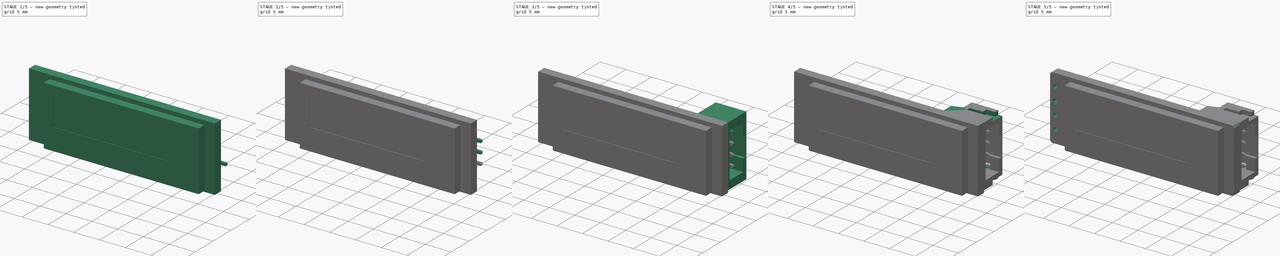
[diagram: build sequence overview — one tinted view per stage of 5, left to right]
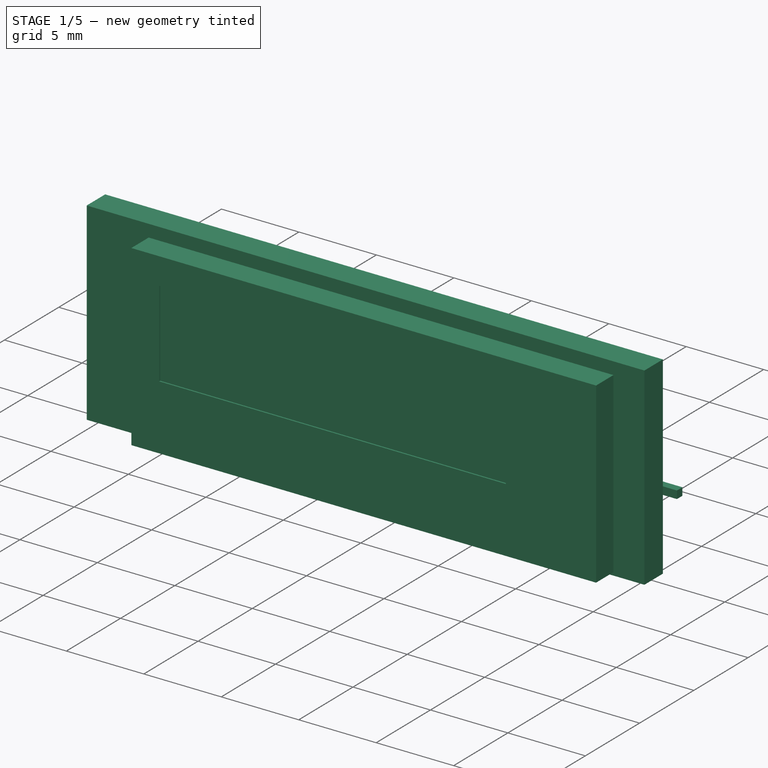
[diagram: stage 1 of 5 — iso view after this stage's code; geometry added in this stage tinted green]
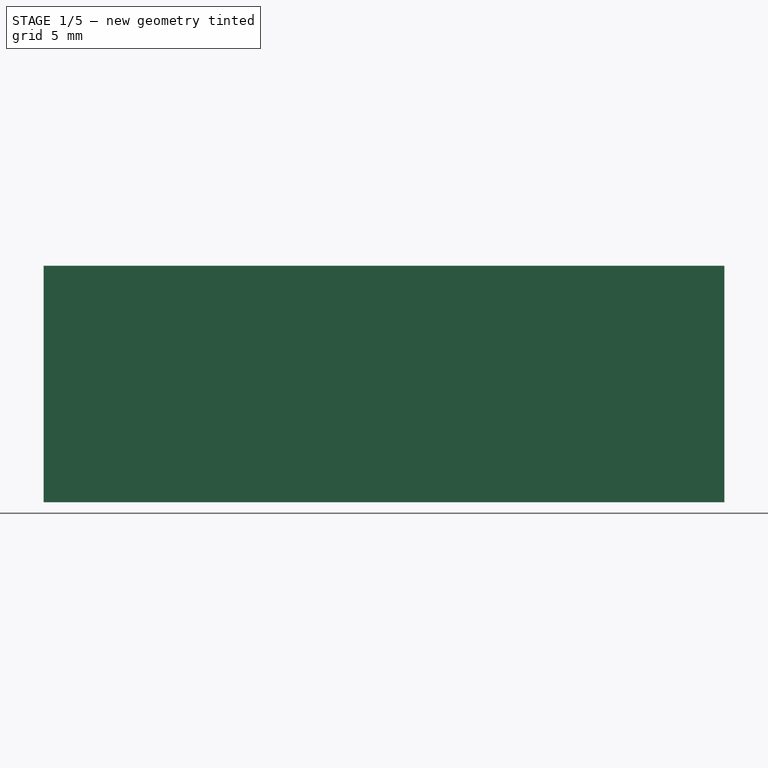
[diagram: stage 1 of 5 — front view after this stage's code; geometry added in this stage tinted green]
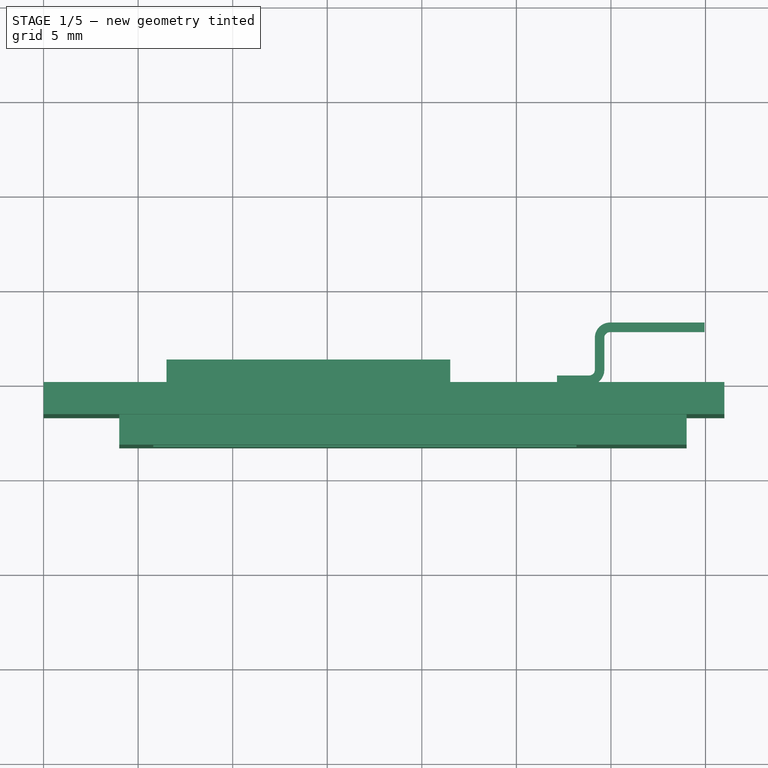
[diagram: stage 1 of 5 — top view after this stage's code; geometry added in this stage tinted green]
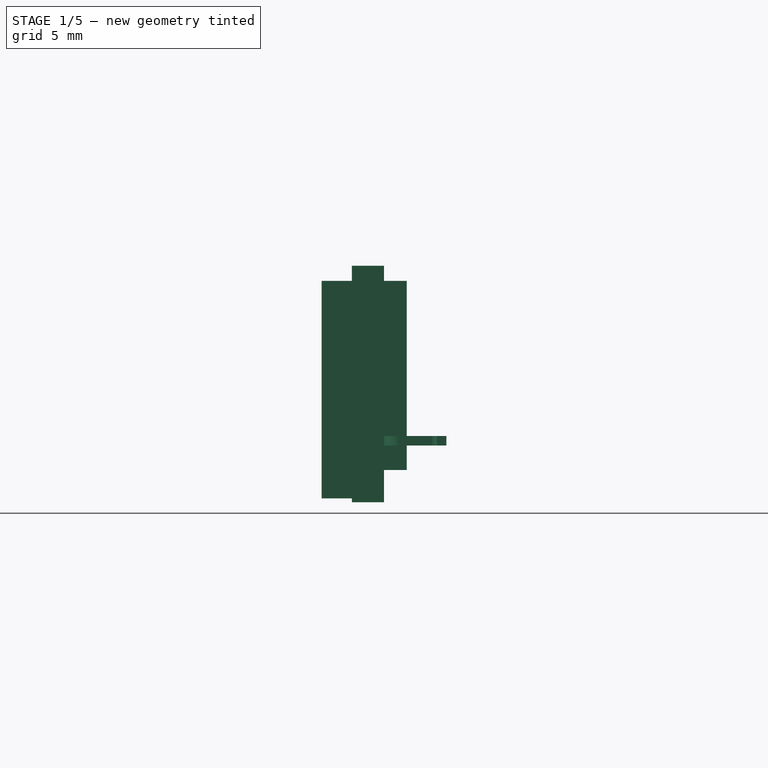
[diagram: stage 1 of 5 — right view after this stage's code; geometry added in this stage tinted green]
FCSTD DOCUMENT  (FreeCAD 0.19R24267 +99 (Git))
Label: Waveshare_OLED_0.91in
License: Creative Commons Attribution-NonCommercial-ShareAlike
LicenseURL: http://creativecommons.org/licenses/by-nc-sa/4.0/
objects: Sketcher::SketchObject×14, PartDesign::Pad×9, PartDesign::Plane×9, PartDesign::Body×7, PartDesign::Pocket×4, PartDesign::Chamfer×4, PartDesign::Mirrored×3, PartDesign::CoordinateSystem×2, PartDesign::Boolean×1, PartDesign::Hole×1, PartDesign::LinearPattern×1, PartDesign::Fillet×1, App::Part×1
note: 75 computed .brp shape members not serialized (recipe doc carries the construction recipe); baked Part::Feature solids carry a one-line shape summary decoded from their .brp

FEATURE [Sketcher::SketchObject] Sketch
  FullyConstrained = true
  MapMode = 5
  Placement = pos=(0,0,0) rot=(1,0,0;1.5708rad)
  Support = -> [XZ_Plane]
  sketch-geometry (4):
    g0: LineSegment StartX=0 StartY=12.5 StartZ=0 EndX=36 EndY=12.5 EndZ=0
    g1: LineSegment StartX=36 StartY=12.5 StartZ=0 EndX=36 EndY=0 EndZ=0
    g2: LineSegment StartX=36 StartY=0 StartZ=0 EndX=0 EndY=0 EndZ=0
    g3: LineSegment StartX=0 StartY=0 StartZ=0 EndX=0 EndY=12.5 EndZ=0
  constraints (11):
    c: Coincident(g0,g1)
    c: Coincident(g1,g2)
    c: Coincident(g2,g3)
    c: Coincident(g3,g0)
    c: Horizontal(g0)
    c: Horizontal(g2)
    c: Vertical(g1)
    c: Vertical(g3)
    c: Distance(g3) = 12.5
    c: Distance(g0) = 36
    c: Coincident(g2,g-1)
FEATURE [PartDesign::Pad] Pad  label="Board Outline"
  Direction = (1,1,1)
  Length = 1.7
  Length2 = 100
  Placement = pos=(0,0,0) rot=(1,0,0;1.5708rad)
  Profile = -> Sketch
  Refine = true
  Type = 0
FEATURE [PartDesign::Body] Body004  label="Pin003"
  Group = -> [DatumPlane003,CopyDatumPlane002,Sketch011,Pad007,Chamfer002]
  Origin = -> Origin004
  Tip = -> Chamfer002
FEATURE [PartDesign::Plane] CopyDatumPlane003
  Length = 60
  Placement = pos=(0,0,6.25) rot=(0,0,1;0rad)
  ResizeMode = 0
  Width = 60
FEATURE [PartDesign::Plane] DatumPlane004
  AttachmentOffset = pos=(0,0,-3) rot=(0,0,1;0rad)
  Length = 60
  MapMode = 5
  Placement = pos=(0,0,3.25) rot=(0,0,1;0rad)
  ResizeMode = 0
  Support = -> [CopyDatumPlane003]
  Width = 60
FEATURE [Sketcher::SketchObject] Sketch012
  FullyConstrained = true
  MapMode = 5
  Placement = pos=(0,0,3.25) rot=(0,0,1;0rad)
  Support = -> [DatumPlane004]
  sketch-geometry (12):
    g0: LineSegment StartX=34.95 StartY=2.8 StartZ=0 EndX=29.95 EndY=2.8 EndZ=0
    g1: LineSegment StartX=29.65 StartY=2.5 StartZ=0 EndX=29.65 EndY=0.8 EndZ=0
    g2: LineSegment StartX=28.85 StartY=-1.6e-15 StartZ=0 EndX=27.15 EndY=0 EndZ=0
    g3: LineSegment StartX=27.15 StartY=0 StartZ=0 EndX=27.15 EndY=0.5 EndZ=0
    g4: LineSegment StartX=27.15 StartY=0.5 StartZ=0 EndX=28.85 EndY=0.5 EndZ=0
    g5: LineSegment StartX=29.15 StartY=0.8 StartZ=0 EndX=29.15 EndY=2.5 EndZ=0
    g6: LineSegment StartX=29.95 StartY=3.3 StartZ=0 EndX=34.95 EndY=3.3 EndZ=0
    g7: LineSegment StartX=34.95 StartY=3.3 StartZ=0 EndX=34.95 EndY=2.8 EndZ=0
    g8: ArcOfCircle CenterX=29.95 CenterY=2.5 CenterZ=0 NormalX=0 NormalY=0 NormalZ=1 AngleXU=0 Radius=0.3 StartAngle=1.5708 EndAngle=3.14159
    g9: ArcOfCircle CenterX=28.85 CenterY=0.8 CenterZ=0 NormalX=0 NormalY=0 NormalZ=1 AngleXU=0 Radius=0.8 StartAngle=4.71239 EndAngle=6.28319
    g10: ArcOfCircle CenterX=28.85 CenterY=0.8 CenterZ=0 NormalX=0 NormalY=0 NormalZ=1 AngleXU=0 Radius=0.3 StartAngle=4.71239 EndAngle=6.28319
    g11: ArcOfCircle CenterX=29.95 CenterY=2.5 CenterZ=0 NormalX=0 NormalY=0 NormalZ=1 AngleXU=0 Radius=0.8 StartAngle=1.5708 EndAngle=3.14159
  constraints (30):
    c: Horizontal(g0)
    c: Vertical(g1)
    c: PointOnObject(g2,g-1)
    c: Coincident(g2,g3)
    c: Vertical(g3)
    c: Coincident(g3,g4)
    c: Horizontal(g4)
    c: Vertical(g5)
    c: Horizontal(g6)
    c: Coincident(g6,g7)
    c: Coincident(g7,g0)
    c: Vertical(g7)
    c: Distance(g7) = 0.5
    c: Equal(g3,g7)
    c: DistanceY(g0) = 2.8
    c: DistanceX(g0) = 34.95
    c: Tangent(g1,g8) = -1.5708
    c: Tangent(g0,g8) = -1.5708
    c: Tangent(g2,g9) = 1.5708
    c: Tangent(g1,g9) = 1.5708
    c: Tangent(g4,g10) = -1.5708
    c: Tangent(g5,g10) = -1.5708
    c: Tangent(g5,g11) = 1.5708
    c: Tangent(g6,g11) = 1.5708
    c: Distance(g0,g1) = 5.3
    c: Distance(g1,g3) = 2.5
    c: Coincident(g10,g9)
    c: Coincident(g11,g8)
    c: Radius(g11) = 0.8
    c: Radius(g9) = 0.8
FEATURE [PartDesign::Pad] Pad008
  Direction = (1,1,1)
  Length = 0.5
  Length2 = 100
  Midplane = true
  Placement = pos=(0,0,3.25) rot=(0,0,1;0rad)
  Profile = -> Sketch012
  Refine = true
  Type = 0
FEATURE [PartDesign::Body] Body001  label="Connector PH2.0"
  Group = -> [Sketch004,Pad003,Sketch005,Pocket,Sketch006,Pocket001,DatumPlane,Mirrored,Sketch007,Pocket002,Mirrored001,Sketch008,Pad004,Mirrored002,Boolean]
  Origin = -> Origin001
  Tip = -> Boolean
FEATURE [PartDesign::Pad] Pad001  label="Display Glas"
  BaseFeature = -> Pad
  Direction = (1,1,1)
  Length = 3.3
  Length2 = 100
  Placement = pos=(0,0,0) rot=(1,0,0;1.5708rad)
  Profile = -> Sketch001
  Refine = true
  Type = 0
FEATURE [Sketcher::SketchObject] Sketch002
  FullyConstrained = true
  MapMode = 5
  Placement = pos=(0,-3.3,1.5e-15) rot=(1,0,0;1.5708rad)
  Support = -> [Pad001]
  sketch-geometry (5):
    g0: LineSegment StartX=5.8 StartY=9.98 StartZ=0 EndX=28.18 EndY=9.98 EndZ=0
    g1: LineSegment StartX=28.18 StartY=9.98 StartZ=0 EndX=28.18 EndY=4.4 EndZ=0
    g2: LineSegment StartX=28.18 StartY=4.4 StartZ=0 EndX=5.8 EndY=4.4 EndZ=0
    g3: LineSegment StartX=5.8 StartY=4.4 StartZ=0 EndX=5.8 EndY=9.98 EndZ=0
    g4: GeomPoint X=16.99 Y=7.19 Z=0
  constraints (15):
    c: Coincident(g0,g1)
    c: Coincident(g1,g2)
    c: Coincident(g2,g3)
    c: Coincident(g3,g0)
    c: Horizontal(g0)
    c: Horizontal(g2)
    c: Vertical(g1)
    c: Vertical(g3)
    c: Distance(g0) = 22.38
    c: Distance(g3) = 5.58
    c: Distance(g-1,g3) = 5.8
    c: Distance(g-1,g2) = 4.4
    c: Symmetric(g0,g1,g4)
    c: DistanceX(g4) = 16.99
    c: DistanceY(g4) = 7.19
FEATURE [PartDesign::Pocket] Pocket003  label="Display Active Area"
  BaseFeature = -> Pad001
  Length = 0.1
  Length2 = 100
  Placement = pos=(0,0,0) rot=(1,0,0;1.5708rad)
  Profile = -> Sketch002
  Refine = true
  Type = 0
FEATURE [PartDesign::Body] Body  label="Mainboard"
  Group = -> [Sketch,Pad,Sketch001,Pad001,Pocket003,Sketch002,Sketch003,Hole,LinearPattern,Fillet]
  Origin = -> Origin
  Tip = -> Fillet
FEATURE [Sketcher::SketchObject] Sketch013
  FullyConstrained = true
  MapMode = 5
  Placement = pos=(0,0,0) rot=(1,0,0;1.5708rad)
  Support = -> [XZ_Plane006]
  sketch-geometry (6):
    g0: LineSegment StartX=19.5 StartY=1.7 StartZ=0 EndX=19.5 EndY=8.7 EndZ=0
    g1: LineSegment StartX=19.5 StartY=8.7 StartZ=0 EndX=6.5 EndY=8.7 EndZ=0
    g2: LineSegment StartX=6.5 StartY=8.7 StartZ=0 EndX=6.5 EndY=11.7 EndZ=0
    g3: LineSegment StartX=6.5 StartY=11.7 StartZ=0 EndX=21.5 EndY=11.7 EndZ=0
    g4: LineSegment StartX=21.5 StartY=11.7 StartZ=0 EndX=21.5 EndY=1.7 EndZ=0
    g5: LineSegment StartX=21.5 StartY=1.7 StartZ=0 EndX=19.5 EndY=1.7 EndZ=0
  constraints (18):
    c: Vertical(g0)
    c: Coincident(g0,g1)
    c: Horizontal(g1)
    c: Coincident(g1,g2)
    c: Vertical(g2)
    c: Coincident(g2,g3)
    c: Horizontal(g3)
    c: Coincident(g3,g4)
    c: Vertical(g4)
    c: Coincident(g4,g5)
    c: Coincident(g5,g0)
    c: Horizontal(g5)
    c: Distance(g5) = 2
    c: Distance(g2) = 3
    c: DistanceY(g3) = 11.7
    c: Distance(g4) = 10
    c: DistanceX(g3) = 21.5
    c: DistanceX(g2) = 6.5
FEATURE [PartDesign::Pad] Pad009
  Direction = (1,1,1)
  Length = 1.2
  Length2 = 100
  Placement = pos=(0,0,0) rot=(1,0,0;1.5708rad)
  Profile = -> Sketch013
  Refine = true
  Reversed = true
  Type = 0
FEATURE [PartDesign::Body] Body006  label="Components"
  Group = -> [Sketch013,Pad009]
  Origin = -> Origin006
  Tip = -> Pad009
FEATURE [PartDesign::CoordinateSystem] LCS_0
  AttacherType = Attacher::AttachEngine3D
  MapMode = 2
  Support = -> [X_Axis007]
FEATURE [PartDesign::CoordinateSystem] LCS_OLEDDisplay_Center
  AttacherType = Attacher::AttachEngine3D
  AttachmentOffset = pos=(16.99,7.19,3.3) rot=(0,0,1;0rad)
  MapMode = 5
  Placement = pos=(16.99,-3.3,7.19) rot=(1,0,0;1.5708rad)
  Support = -> [XZ_Plane007]
  expr: .AttachmentOffset.Base.x = Sketch002.Constraints[13]
  expr: .AttachmentOffset.Base.y = Sketch002.Constraints[14]
  expr: .AttachmentOffset.Base.z = <<Display Glas>>.Length
FEATURE [App::Part] OLED_Display
  Group = -> [LCS_0,LCS_OLEDDisplay_Center,Body,Body001,Body006]
  Origin = -> Origin007
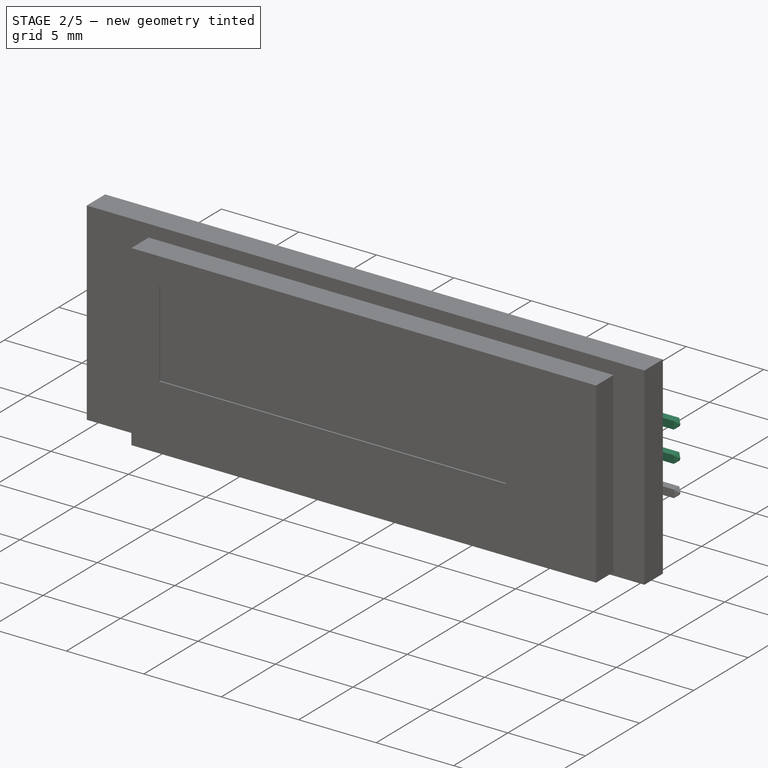
[diagram: stage 2 of 5 — iso view after this stage's code; geometry added in this stage tinted green]
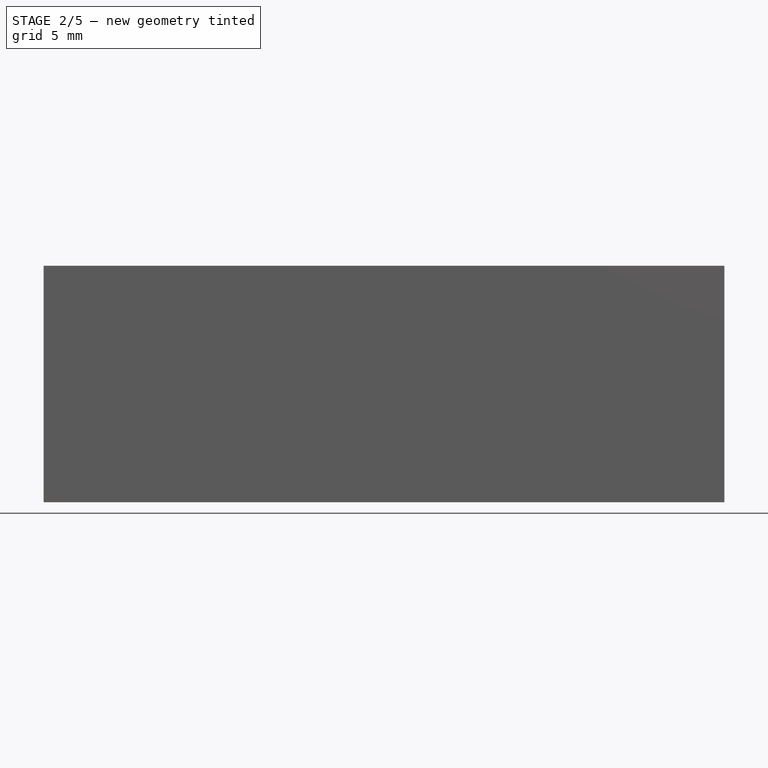
[diagram: stage 2 of 5 — front view after this stage's code; geometry added in this stage tinted green]
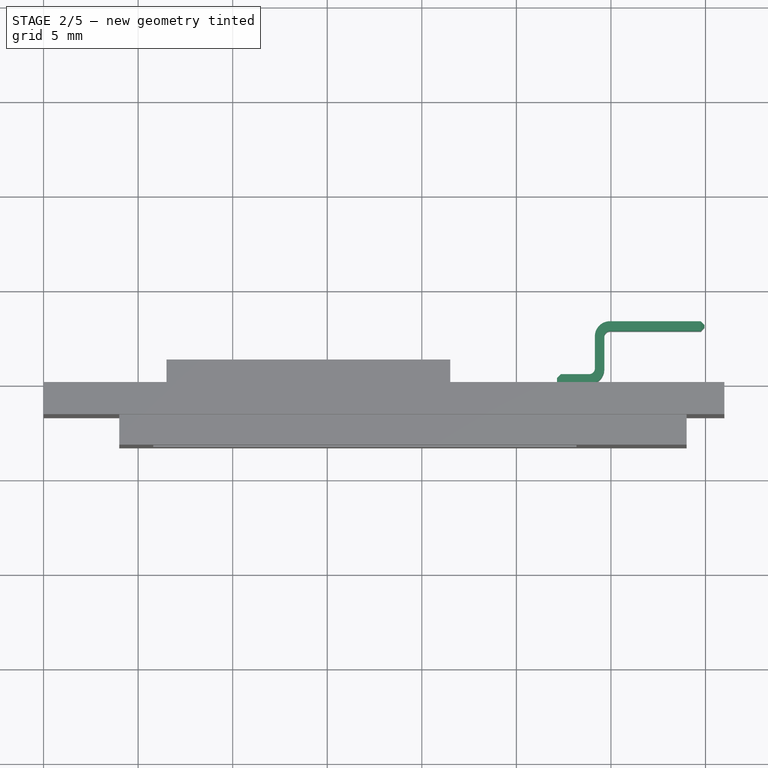
[diagram: stage 2 of 5 — top view after this stage's code; geometry added in this stage tinted green]
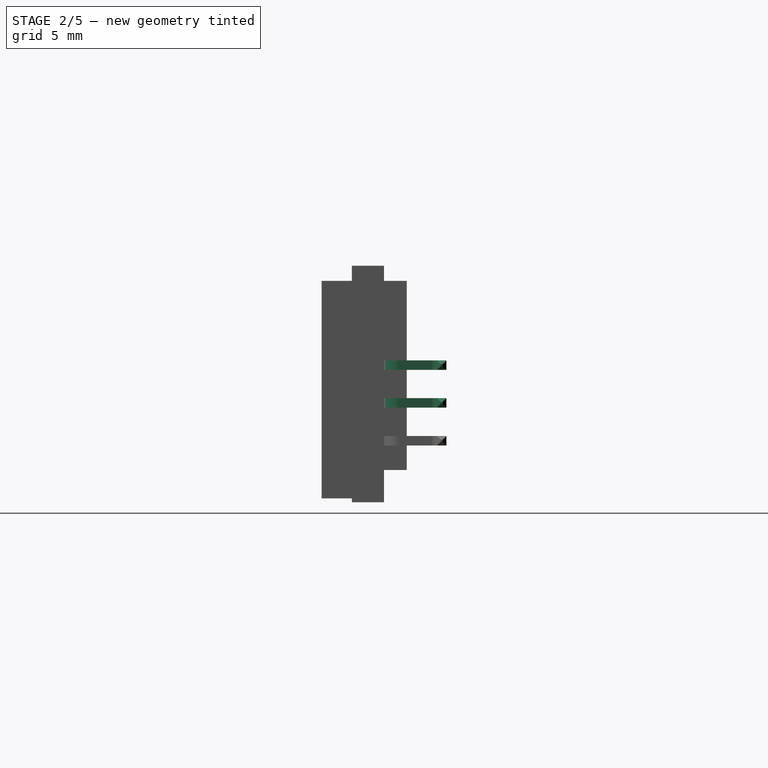
[diagram: stage 2 of 5 — right view after this stage's code; geometry added in this stage tinted green]
FEATURE [PartDesign::Body] Body002  label="Pin001"
  Group = -> [DatumPlane001,CopyDatumPlane,Sketch009,Pad005,Chamfer]
  Origin = -> Origin002
  Tip = -> Chamfer
FEATURE [PartDesign::Plane] CopyDatumPlane001
  Length = 60
  Placement = pos=(0,0,6.25) rot=(0,0,1;0rad)
  ResizeMode = 0
  Width = 60
FEATURE [PartDesign::Plane] DatumPlane002
  AttachmentOffset = pos=(0,0,1) rot=(0,0,1;0rad)
  Length = 60
  MapMode = 5
  Placement = pos=(0,0,7.25) rot=(0,0,1;0rad)
  ResizeMode = 0
  Support = -> [CopyDatumPlane001]
  Width = 60
FEATURE [Sketcher::SketchObject] Sketch010
  FullyConstrained = true
  MapMode = 5
  Placement = pos=(0,0,7.25) rot=(0,0,1;0rad)
  Support = -> [DatumPlane002]
  sketch-geometry (12):
    g0: LineSegment StartX=34.95 StartY=2.8 StartZ=0 EndX=29.95 EndY=2.8 EndZ=0
    g1: LineSegment StartX=29.65 StartY=2.5 StartZ=0 EndX=29.65 EndY=0.8 EndZ=0
    g2: LineSegment StartX=28.85 StartY=-1.6e-15 StartZ=0 EndX=27.15 EndY=0 EndZ=0
    g3: LineSegment StartX=27.15 StartY=0 StartZ=0 EndX=27.15 EndY=0.5 EndZ=0
    g4: LineSegment StartX=27.15 StartY=0.5 StartZ=0 EndX=28.85 EndY=0.5 EndZ=0
    g5: LineSegment StartX=29.15 StartY=0.8 StartZ=0 EndX=29.15 EndY=2.5 EndZ=0
    g6: LineSegment StartX=29.95 StartY=3.3 StartZ=0 EndX=34.95 EndY=3.3 EndZ=0
    g7: LineSegment StartX=34.95 StartY=3.3 StartZ=0 EndX=34.95 EndY=2.8 EndZ=0
    g8: ArcOfCircle CenterX=29.95 CenterY=2.5 CenterZ=0 NormalX=0 NormalY=0 NormalZ=1 AngleXU=0 Radius=0.3 StartAngle=1.5708 EndAngle=3.14159
    g9: ArcOfCircle CenterX=28.85 CenterY=0.8 CenterZ=0 NormalX=0 NormalY=0 NormalZ=1 AngleXU=0 Radius=0.8 StartAngle=4.71239 EndAngle=6.28319
    g10: ArcOfCircle CenterX=28.85 CenterY=0.8 CenterZ=0 NormalX=0 NormalY=0 NormalZ=1 AngleXU=0 Radius=0.3 StartAngle=4.71239 EndAngle=6.28319
    g11: ArcOfCircle CenterX=29.95 CenterY=2.5 CenterZ=0 NormalX=0 NormalY=0 NormalZ=1 AngleXU=0 Radius=0.8 StartAngle=1.5708 EndAngle=3.14159
  constraints (30):
    c: Horizontal(g0)
    c: Vertical(g1)
    c: PointOnObject(g2,g-1)
    c: Coincident(g2,g3)
    c: Vertical(g3)
    c: Coincident(g3,g4)
    c: Horizontal(g4)
    c: Vertical(g5)
    c: Horizontal(g6)
    c: Coincident(g6,g7)
    c: Coincident(g7,g0)
    c: Vertical(g7)
    c: Distance(g7) = 0.5
    c: Equal(g3,g7)
    c: DistanceY(g0) = 2.8
    c: DistanceX(g0) = 34.95
    c: Tangent(g1,g8) = -1.5708
    c: Tangent(g0,g8) = -1.5708
    c: Tangent(g2,g9) = 1.5708
    c: Tangent(g1,g9) = 1.5708
    c: Tangent(g4,g10) = -1.5708
    c: Tangent(g5,g10) = -1.5708
    c: Tangent(g5,g11) = 1.5708
    c: Tangent(g6,g11) = 1.5708
    c: Distance(g0,g1) = 5.3
    c: Distance(g1,g3) = 2.5
    c: Coincident(g10,g9)
    c: Coincident(g11,g8)
    c: Radius(g11) = 0.8
    c: Radius(g9) = 0.8
FEATURE [PartDesign::Pad] Pad006
  Direction = (1,1,1)
  Length = 0.5
  Length2 = 100
  Midplane = true
  Placement = pos=(0,0,7.25) rot=(0,0,1;0rad)
  Profile = -> Sketch010
  Refine = true
  Type = 0
FEATURE [PartDesign::Chamfer] Chamfer001
  Angle = 45
  Base = -> Pad006 [Edge23,Face2]
  BaseFeature = -> Pad006
  ChamferType = 0
  FlipDirection = false
  Placement = pos=(0,0,7.25) rot=(0,0,1;0rad)
  Refine = true
  Size = 0.2
  Size2 = 1
  SupportTransform = false
FEATURE [PartDesign::Body] Body003  label="Pin002"
  Group = -> [DatumPlane002,CopyDatumPlane001,Sketch010,Pad006,Chamfer001]
  Origin = -> Origin003
  Tip = -> Chamfer001
FEATURE [PartDesign::Plane] CopyDatumPlane002
  Length = 60
  Placement = pos=(0,0,6.25) rot=(0,0,1;0rad)
  ResizeMode = 0
  Width = 60
FEATURE [PartDesign::Plane] DatumPlane003
  AttachmentOffset = pos=(0,0,-1) rot=(0,0,1;0rad)
  Length = 60
  MapMode = 5
  Placement = pos=(0,0,5.25) rot=(0,0,1;0rad)
  ResizeMode = 0
  Support = -> [CopyDatumPlane002]
  Width = 60
FEATURE [Sketcher::SketchObject] Sketch011
  FullyConstrained = true
  MapMode = 5
  Placement = pos=(0,0,5.25) rot=(0,0,1;0rad)
  Support = -> [DatumPlane003]
  sketch-geometry (12):
    g0: LineSegment StartX=34.95 StartY=2.8 StartZ=0 EndX=29.95 EndY=2.8 EndZ=0
    g1: LineSegment StartX=29.65 StartY=2.5 StartZ=0 EndX=29.65 EndY=0.8 EndZ=0
    g2: LineSegment StartX=28.85 StartY=-1.6e-15 StartZ=0 EndX=27.15 EndY=0 EndZ=0
    g3: LineSegment StartX=27.15 StartY=0 StartZ=0 EndX=27.15 EndY=0.5 EndZ=0
    g4: LineSegment StartX=27.15 StartY=0.5 StartZ=0 EndX=28.85 EndY=0.5 EndZ=0
    g5: LineSegment StartX=29.15 StartY=0.8 StartZ=0 EndX=29.15 EndY=2.5 EndZ=0
    g6: LineSegment StartX=29.95 StartY=3.3 StartZ=0 EndX=34.95 EndY=3.3 EndZ=0
    g7: LineSegment StartX=34.95 StartY=3.3 StartZ=0 EndX=34.95 EndY=2.8 EndZ=0
    g8: ArcOfCircle CenterX=29.95 CenterY=2.5 CenterZ=0 NormalX=0 NormalY=0 NormalZ=1 AngleXU=0 Radius=0.3 StartAngle=1.5708 EndAngle=3.14159
    g9: ArcOfCircle CenterX=28.85 CenterY=0.8 CenterZ=0 NormalX=0 NormalY=0 NormalZ=1 AngleXU=0 Radius=0.8 StartAngle=4.71239 EndAngle=6.28319
    g10: ArcOfCircle CenterX=28.85 CenterY=0.8 CenterZ=0 NormalX=0 NormalY=0 NormalZ=1 AngleXU=0 Radius=0.3 StartAngle=4.71239 EndAngle=6.28319
    g11: ArcOfCircle CenterX=29.95 CenterY=2.5 CenterZ=0 NormalX=0 NormalY=0 NormalZ=1 AngleXU=0 Radius=0.8 StartAngle=1.5708 EndAngle=3.14159
  constraints (30):
    c: Horizontal(g0)
    c: Vertical(g1)
    c: PointOnObject(g2,g-1)
    c: Coincident(g2,g3)
    c: Vertical(g3)
    c: Coincident(g3,g4)
    c: Horizontal(g4)
    c: Vertical(g5)
    c: Horizontal(g6)
    c: Coincident(g6,g7)
    c: Coincident(g7,g0)
    c: Vertical(g7)
    c: Distance(g7) = 0.5
    c: Equal(g3,g7)
    c: DistanceY(g0) = 2.8
    c: DistanceX(g0) = 34.95
    c: Tangent(g1,g8) = -1.5708
    c: Tangent(g0,g8) = -1.5708
    c: Tangent(g2,g9) = 1.5708
    c: Tangent(g1,g9) = 1.5708
    c: Tangent(g4,g10) = -1.5708
    c: Tangent(g5,g10) = -1.5708
    c: Tangent(g5,g11) = 1.5708
    c: Tangent(g6,g11) = 1.5708
    c: Distance(g0,g1) = 5.3
    c: Distance(g1,g3) = 2.5
    c: Coincident(g10,g9)
    c: Coincident(g11,g8)
    c: Radius(g11) = 0.8
    c: Radius(g9) = 0.8
FEATURE [PartDesign::Pad] Pad007
  Direction = (1,1,1)
  Length = 0.5
  Length2 = 100
  Midplane = true
  Placement = pos=(0,0,5.25) rot=(0,0,1;0rad)
  Profile = -> Sketch011
  Refine = true
  Type = 0
FEATURE [PartDesign::Chamfer] Chamfer002
  Angle = 45
  Base = -> Pad007 [Edge23,Face2]
  BaseFeature = -> Pad007
  ChamferType = 0
  FlipDirection = false
  Placement = pos=(0,0,5.25) rot=(0,0,1;0rad)
  Refine = true
  Size = 0.2
  Size2 = 1
  SupportTransform = false
FEATURE [PartDesign::Chamfer] Chamfer003
  Angle = 45
  Base = -> Pad008 [Edge23,Face2]
  BaseFeature = -> Pad008
  ChamferType = 0
  FlipDirection = false
  Placement = pos=(0,0,3.25) rot=(0,0,1;0rad)
  Refine = true
  Size = 0.2
  Size2 = 1
  SupportTransform = false
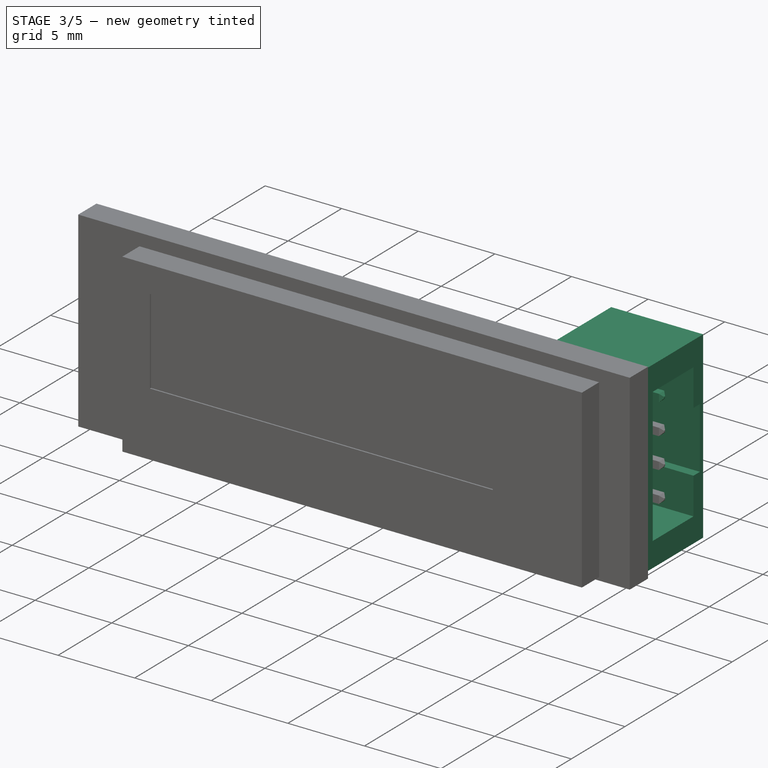
[diagram: stage 3 of 5 — iso view after this stage's code; geometry added in this stage tinted green]
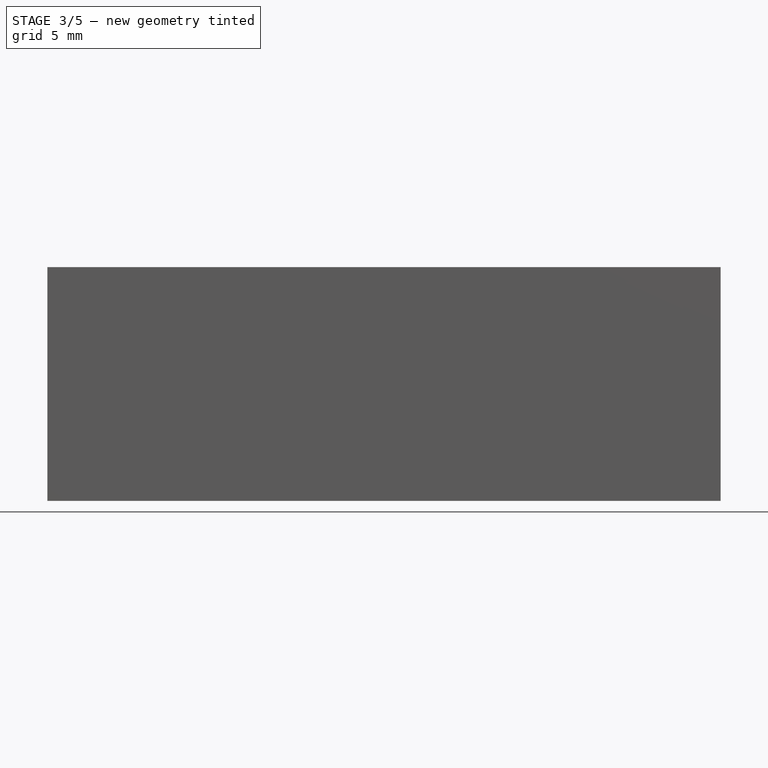
[diagram: stage 3 of 5 — front view after this stage's code; geometry added in this stage tinted green]
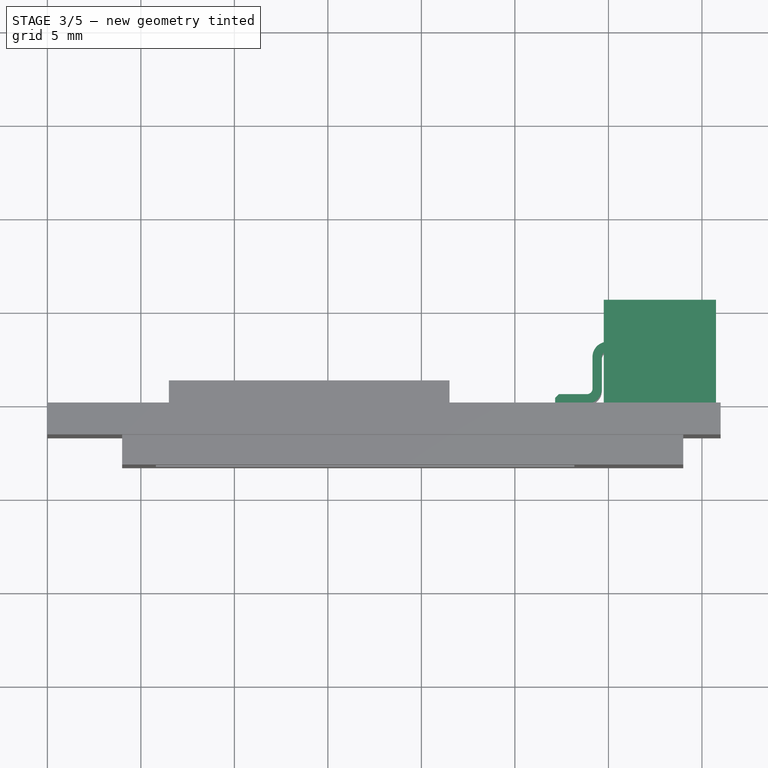
[diagram: stage 3 of 5 — top view after this stage's code; geometry added in this stage tinted green]
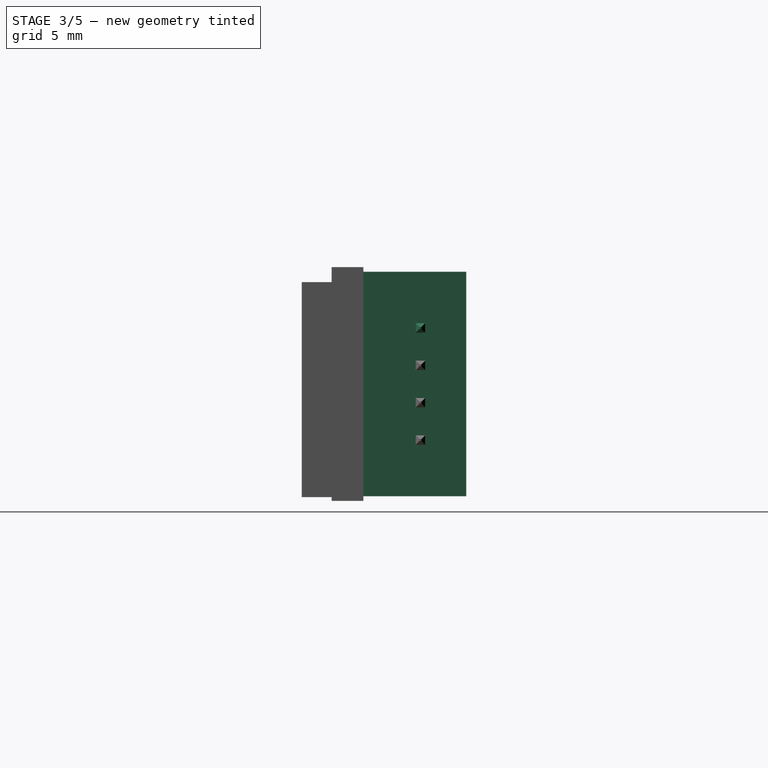
[diagram: stage 3 of 5 — right view after this stage's code; geometry added in this stage tinted green]
FEATURE [Sketcher::SketchObject] Sketch001
  FullyConstrained = true
  MapMode = 5
  Placement = pos=(0,0,0) rot=(1,0,0;1.5708rad)
  Support = -> [XZ_Plane]
  sketch-geometry (4):
    g0: LineSegment StartX=4 StartY=11.7 StartZ=0 EndX=34 EndY=11.7 EndZ=0
    g1: LineSegment StartX=34 StartY=11.7 StartZ=0 EndX=34 EndY=0.2 EndZ=0
    g2: LineSegment StartX=34 StartY=0.2 StartZ=0 EndX=4 EndY=0.2 EndZ=0
    g3: LineSegment StartX=4 StartY=0.2 StartZ=0 EndX=4 EndY=11.7 EndZ=0
  constraints (12):
    c: Coincident(g0,g1)
    c: Coincident(g1,g2)
    c: Coincident(g2,g3)
    c: Coincident(g3,g0)
    c: Horizontal(g0)
    c: Horizontal(g2)
    c: Vertical(g1)
    c: Vertical(g3)
    c: Distance(g0) = 30
    c: Distance(g3) = 11.5
    c: Distance(g-1,g3) = 4
    c: Distance(g-1,g2) = 0.2
FEATURE [Sketcher::SketchObject] Sketch003
  FullyConstrained = true
  MapMode = 5
  Placement = pos=(0,0,0) rot=(1,0,0;1.5708rad)
  Support = -> [XZ_Plane]
  sketch-geometry (1):
    g0: Circle CenterX=1 CenterY=2.44 CenterZ=0 NormalX=0 NormalY=0 NormalZ=1 AngleXU=0 Radius=0.5
  constraints (3):
    c: DistanceX(g-2,g0) = 1
    c: Radius(g0) = 0.5
    c: DistanceY(g-1,g0) = 2.44
FEATURE [Sketcher::SketchObject] Sketch004
  FullyConstrained = true
  MapMode = 5
  Placement = pos=(0,0,0) rot=(1,0,0;1.5708rad)
  Support = -> [XZ_Plane001]
  expr: Constraints[20] = Sketch.Constraints[9]
  expr: Constraints[19] = Sketch.Constraints[8]
  sketch-geometry (8):
    g0: LineSegment StartX=29.75 StartY=0.25 StartZ=0 EndX=35.75 EndY=0.25 EndZ=0
    g1: LineSegment StartX=35.75 StartY=0.25 StartZ=0 EndX=35.75 EndY=12.25 EndZ=0
    g2: LineSegment StartX=35.75 StartY=12.25 StartZ=0 EndX=29.75 EndY=12.25 EndZ=0
    g3: LineSegment StartX=29.75 StartY=12.25 StartZ=0 EndX=29.75 EndY=0.25 EndZ=0
    g4: LineSegment StartX=0 StartY=12.5 StartZ=0 EndX=36 EndY=12.5 EndZ=0
    g5: LineSegment StartX=36 StartY=12.5 StartZ=0 EndX=36 EndY=0 EndZ=0
    g6: LineSegment StartX=36 StartY=0 StartZ=0 EndX=0 EndY=0 EndZ=0
    g7: LineSegment StartX=0 StartY=0 StartZ=0 EndX=0 EndY=12.5 EndZ=0
  constraints (23):
    c: Coincident(g0,g1)
    c: Coincident(g1,g2)
    c: Coincident(g2,g3)
    c: Coincident(g3,g0)
    c: Horizontal(g0)
    c: Horizontal(g2)
    c: Vertical(g1)
    c: Vertical(g3)
    c: DistanceY(g0) = 0.25
    c: Distance(g1) = 12
    c: Distance(g2) = 6
    c: Coincident(g4,g5)
    c: Coincident(g5,g6)
    c: Coincident(g6,g7)
    c: Coincident(g7,g4)
    c: Horizontal(g4)
    c: Horizontal(g6)
    c: Vertical(g5)
    c: Vertical(g7)
    c: Distance(g7) = 12.5
    c: Distance(g4) = 36
    c: Coincident(g6,g-1)
    c: Distance(g0,g5) = 0.25
FEATURE [PartDesign::Pad] Pad003
  Direction = (1,1,1)
  Length = 5.5
  Length2 = 100
  Placement = pos=(0,0,0) rot=(1,0,0;1.5708rad)
  Profile = -> Sketch004
  Refine = true
  Reversed = true
  Type = 0
FEATURE [Sketcher::SketchObject] Sketch005
  FullyConstrained = true
  MapMode = 5
  Placement = pos=(35.75,0,0) rot=(0.707107,0,0.707107;3.14159rad)
  Support = -> [Pad003]
  sketch-geometry (9):
    g0: LineSegment StartX=1.85 StartY=-0.8 StartZ=0 EndX=10.65 EndY=-0.8 EndZ=0
    g1: LineSegment StartX=10.65 StartY=-0.8 StartZ=0 EndX=10.65 EndY=-4.6 EndZ=0
    g2: LineSegment StartX=10.65 StartY=-4.6 StartZ=0 EndX=8.25 EndY=-4.6 EndZ=0
    g3: LineSegment StartX=1.85 StartY=-4.6 StartZ=0 EndX=1.85 EndY=-0.8 EndZ=0
    g4: GeomPoint X=6.25 Y=-2.7 Z=0
    g5: LineSegment StartX=4.25 StartY=-4.6 StartZ=0 EndX=4.25 EndY=-5.2 EndZ=0
    g6: LineSegment StartX=4.25 StartY=-5.2 StartZ=0 EndX=8.25 EndY=-5.2 EndZ=0
    g7: LineSegment StartX=8.25 StartY=-5.2 StartZ=0 EndX=8.25 EndY=-4.6 EndZ=0
    g8: LineSegment StartX=4.25 StartY=-4.6 StartZ=0 EndX=1.85 EndY=-4.6 EndZ=0
  constraints (24):
    c: Coincident(g0,g1)
    c: Coincident(g1,g2)
    c: Coincident(g8,g3)
    c: Coincident(g3,g0)
    c: Horizontal(g0)
    c: Horizontal(g2)
    c: Vertical(g1)
    c: Vertical(g3)
    c: Symmetric(g0,g1,g4)
    c: DistanceX(g4) = 6.25
    c: Distance(g1) = 3.8
    c: Distance(g-1,g0) = 0.8
    c: Coincident(g5,g6)
    c: Horizontal(g6)
    c: Coincident(g6,g7)
    c: Vertical(g5)
    c: Coincident(g2,g7)
    c: Coincident(g8,g5)
    c: Tangent(g2,g8)
    c: Vertical(g7)
    c: Distance(g0) = 8.8
    c: Distance(g6) = 4
    c: Distance(g5) = 0.6
    c: Distance(g2) = 2.4
FEATURE [PartDesign::Pocket] Pocket
  BaseFeature = -> Pad003
  Length = 4.5
  Length2 = 100
  Placement = pos=(0,0,0) rot=(1,0,0;1.5708rad)
  Profile = -> Sketch005
  Refine = true
  Type = 0
FEATURE [PartDesign::Plane] CopyDatumPlane
  Length = 70.8999
  Placement = pos=(0,0,6.25) rot=(0,0,1;0rad)
  ResizeMode = 0
  Width = 60.9499
FEATURE [PartDesign::Plane] DatumPlane001
  AttachmentOffset = pos=(0,0,3) rot=(0,0,1;0rad)
  Length = 60
  MapMode = 5
  Placement = pos=(0,0,9.25) rot=(0,0,1;0rad)
  ResizeMode = 0
  Support = -> [CopyDatumPlane]
  Width = 60
FEATURE [Sketcher::SketchObject] Sketch009
  FullyConstrained = true
  MapMode = 5
  Placement = pos=(0,0,9.25) rot=(0,0,1;0rad)
  Support = -> [DatumPlane001]
  sketch-geometry (12):
    g0: LineSegment StartX=34.95 StartY=2.8 StartZ=0 EndX=29.95 EndY=2.8 EndZ=0
    g1: LineSegment StartX=29.65 StartY=2.5 StartZ=0 EndX=29.65 EndY=0.8 EndZ=0
    g2: LineSegment StartX=28.85 StartY=-1.6e-15 StartZ=0 EndX=27.15 EndY=0 EndZ=0
    g3: LineSegment StartX=27.15 StartY=0 StartZ=0 EndX=27.15 EndY=0.5 EndZ=0
    g4: LineSegment StartX=27.15 StartY=0.5 StartZ=0 EndX=28.85 EndY=0.5 EndZ=0
    g5: LineSegment StartX=29.15 StartY=0.8 StartZ=0 EndX=29.15 EndY=2.5 EndZ=0
    g6: LineSegment StartX=29.95 StartY=3.3 StartZ=0 EndX=34.95 EndY=3.3 EndZ=0
    g7: LineSegment StartX=34.95 StartY=3.3 StartZ=0 EndX=34.95 EndY=2.8 EndZ=0
    g8: ArcOfCircle CenterX=29.95 CenterY=2.5 CenterZ=0 NormalX=0 NormalY=0 NormalZ=1 AngleXU=0 Radius=0.3 StartAngle=1.5708 EndAngle=3.14159
    g9: ArcOfCircle CenterX=28.85 CenterY=0.8 CenterZ=0 NormalX=0 NormalY=0 NormalZ=1 AngleXU=0 Radius=0.8 StartAngle=4.71239 EndAngle=6.28319
    g10: ArcOfCircle CenterX=28.85 CenterY=0.8 CenterZ=0 NormalX=0 NormalY=0 NormalZ=1 AngleXU=0 Radius=0.3 StartAngle=4.71239 EndAngle=6.28319
    g11: ArcOfCircle CenterX=29.95 CenterY=2.5 CenterZ=0 NormalX=0 NormalY=0 NormalZ=1 AngleXU=0 Radius=0.8 StartAngle=1.5708 EndAngle=3.14159
  constraints (30):
    c: Horizontal(g0)
    c: Vertical(g1)
    c: PointOnObject(g2,g-1)
    c: Coincident(g2,g3)
    c: Vertical(g3)
    c: Coincident(g3,g4)
    c: Horizontal(g4)
    c: Vertical(g5)
    c: Horizontal(g6)
    c: Coincident(g6,g7)
    c: Coincident(g7,g0)
    c: Vertical(g7)
    c: Distance(g7) = 0.5
    c: Equal(g3,g7)
    c: DistanceY(g0) = 2.8
    c: DistanceX(g0) = 34.95
    c: Tangent(g1,g8) = -1.5708
    c: Tangent(g0,g8) = -1.5708
    c: Tangent(g2,g9) = 1.5708
    c: Tangent(g1,g9) = 1.5708
    c: Tangent(g4,g10) = -1.5708
    c: Tangent(g5,g10) = -1.5708
    c: Tangent(g5,g11) = 1.5708
    c: Tangent(g6,g11) = 1.5708
    c: Distance(g0,g1) = 5.3
    c: Distance(g1,g3) = 2.5
    c: Coincident(g10,g9)
    c: Coincident(g11,g8)
    c: Radius(g11) = 0.8
    c: Radius(g9) = 0.8
FEATURE [PartDesign::Pad] Pad005
  Direction = (1,1,1)
  Length = 0.5
  Length2 = 100
  Midplane = true
  Placement = pos=(0,0,9.25) rot=(0,0,1;0rad)
  Profile = -> Sketch009
  Refine = true
  Type = 0
FEATURE [PartDesign::Chamfer] Chamfer
  Angle = 45
  Base = -> Pad005 [Edge23,Face2]
  BaseFeature = -> Pad005
  ChamferType = 0
  FlipDirection = false
  Placement = pos=(0,0,9.25) rot=(0,0,1;0rad)
  Refine = true
  Size = 0.2
  Size2 = 1
  SupportTransform = false
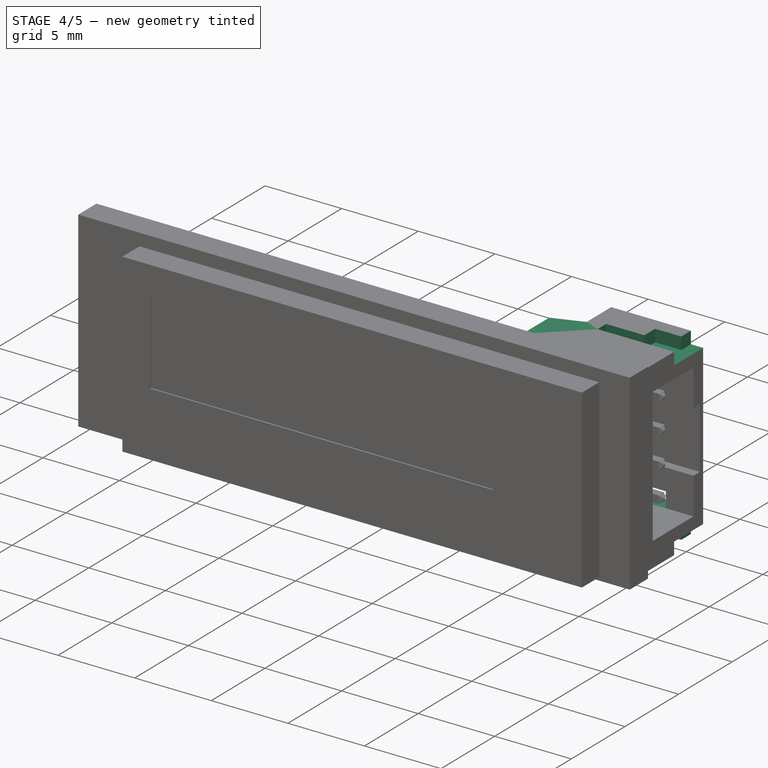
[diagram: stage 4 of 5 — iso view after this stage's code; geometry added in this stage tinted green]
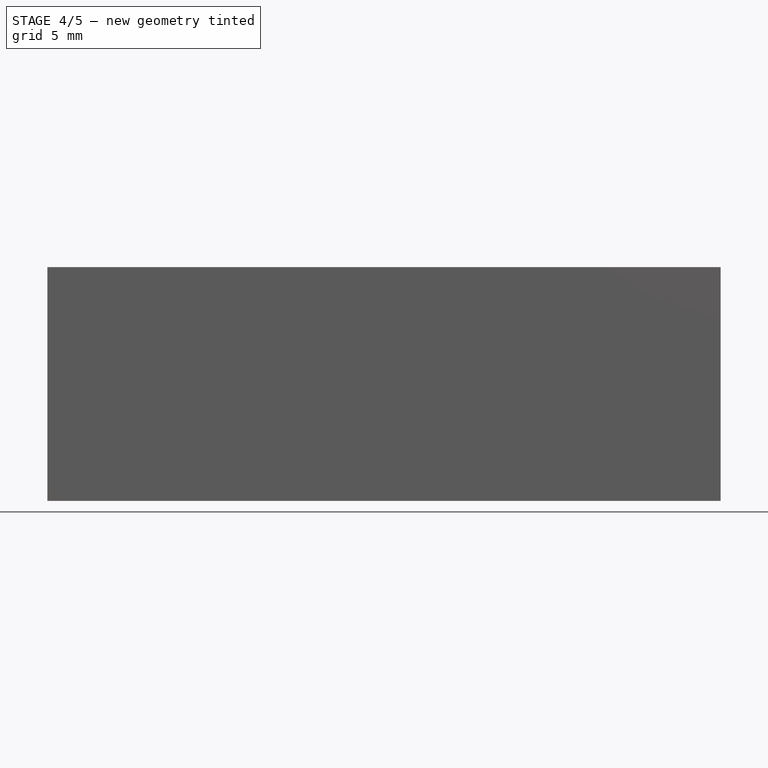
[diagram: stage 4 of 5 — front view after this stage's code; geometry added in this stage tinted green]
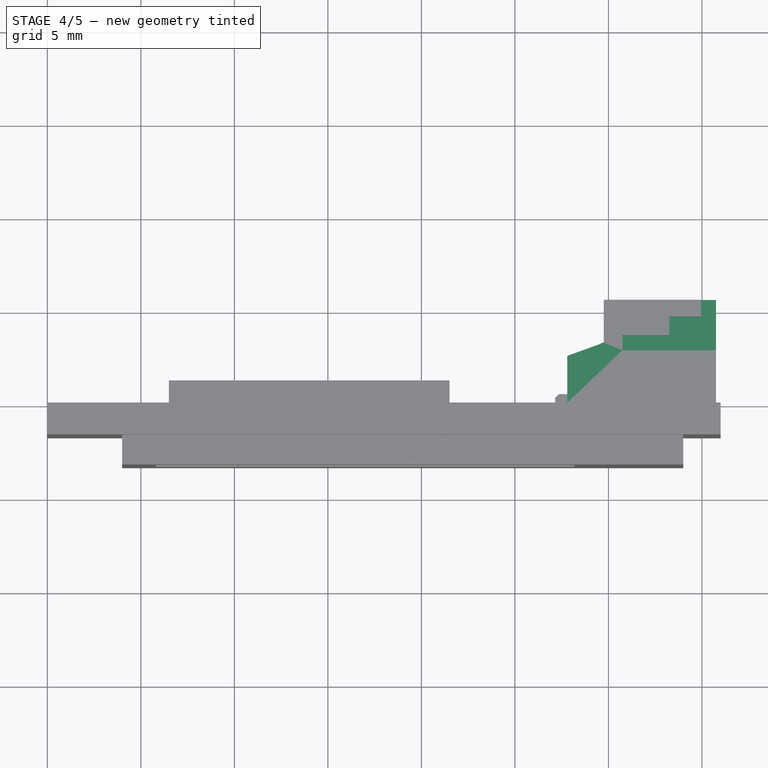
[diagram: stage 4 of 5 — top view after this stage's code; geometry added in this stage tinted green]
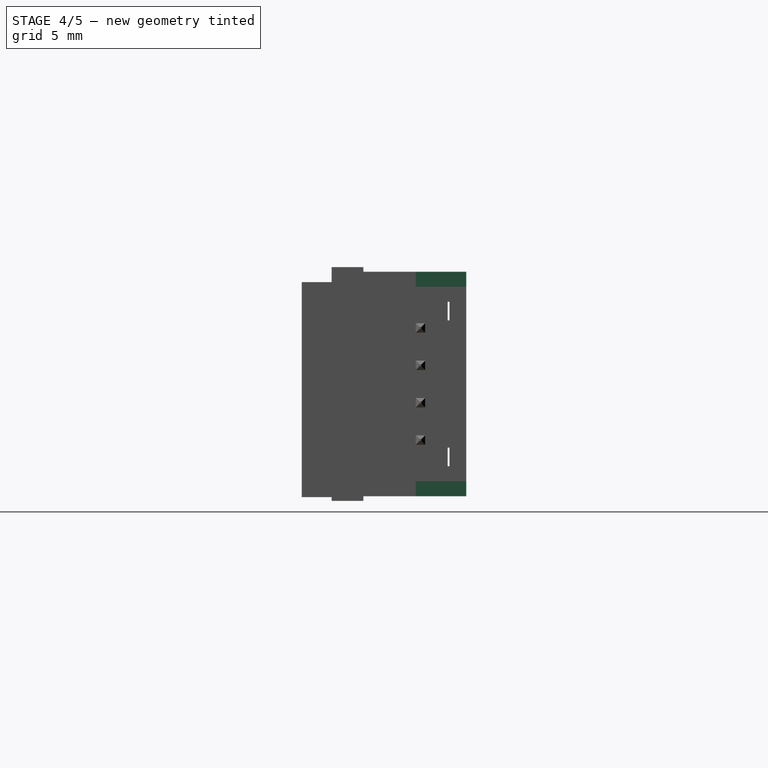
[diagram: stage 4 of 5 — right view after this stage's code; geometry added in this stage tinted green]
FEATURE [Sketcher::SketchObject] Sketch006
  FullyConstrained = true
  MapMode = 5
  Placement = pos=(0,8.1e-15,12.25) rot=(0,0,1;3.14159rad)
  Support = -> [Pocket]
  sketch-geometry (8):
    g0: LineSegment StartX=-34.95 StartY=-6 StartZ=0 EndX=-34.95 EndY=-4.6 EndZ=0
    g1: LineSegment StartX=-34.95 StartY=-4.6 StartZ=0 EndX=-33.25 EndY=-4.6 EndZ=0
    g2: LineSegment StartX=-33.25 StartY=-4.6 StartZ=0 EndX=-33.25 EndY=-3.6 EndZ=0
    g3: LineSegment StartX=-33.25 StartY=-3.6 StartZ=0 EndX=-30.75 EndY=-3.6 EndZ=0
    g4: LineSegment StartX=-30.75 StartY=-3.6 StartZ=0 EndX=-30.75 EndY=-2.8 EndZ=0
    g5: LineSegment StartX=-30.75 StartY=-2.8 StartZ=0 EndX=-35.75 EndY=-2.8 EndZ=0
    g6: LineSegment StartX=-35.75 StartY=-2.8 StartZ=0 EndX=-35.75 EndY=-6 EndZ=0
    g7: LineSegment StartX=-35.75 StartY=-6 StartZ=0 EndX=-34.95 EndY=-6 EndZ=0
  constraints (24):
    c: Vertical(g0)
    c: Coincident(g0,g1)
    c: Horizontal(g1)
    c: Coincident(g1,g2)
    c: Vertical(g2)
    c: Coincident(g2,g3)
    c: Horizontal(g3)
    c: Coincident(g3,g4)
    c: Vertical(g4)
    c: Coincident(g4,g5)
    c: Horizontal(g5)
    c: Coincident(g5,g6)
    c: Vertical(g6)
    c: Coincident(g6,g7)
    c: Coincident(g7,g0)
    c: Horizontal(g7)
    c: Distance(g4) = 0.8
    c: Distance(g2) = 1
    c: DistanceY(g0) = -6
    c: DistanceX(g6) = -35.75
    c: Distance(g7) = 0.8
    c: Distance(g1,g6) = 2.5
    c: Distance(g5) = 5
    c: DistanceY(g5) = -2.8
FEATURE [PartDesign::Pocket] Pocket001
  BaseFeature = -> Pocket
  Length = 0.8
  Length2 = 100
  Placement = pos=(0,0,0) rot=(1,0,0;1.5708rad)
  Profile = -> Sketch006
  Refine = true
  Type = 0
FEATURE [PartDesign::Plane] DatumPlane  label="Symmetry Plane"
  AttachmentOffset = pos=(0,0,6.25) rot=(0,0,1;0rad)
  Length = 60
  MapMode = 5
  Placement = pos=(0,0,6.25) rot=(0,0,1;0rad)
  ResizeMode = 0
  Support = -> [XY_Plane001]
  Width = 60
FEATURE [PartDesign::Mirrored] Mirrored
  BaseFeature = -> Pocket001
  MirrorPlane = -> DatumPlane
  Originals = -> [Pocket001]
  Placement = pos=(0,0,0) rot=(1,0,0;1.5708rad)
  Refine = true
FEATURE [Sketcher::SketchObject] Sketch007
  FullyConstrained = true
  MapMode = 5
  Placement = pos=(0,5.5,-2.4e-15) rot=(-1,0,0;1.5708rad)
  Support = -> [Mirrored]
  sketch-geometry (4):
    g0: LineSegment StartX=29.75 StartY=-1.85 StartZ=0 EndX=33.95 EndY=-1.85 EndZ=0
    g1: LineSegment StartX=33.95 StartY=-1.85 StartZ=0 EndX=33.95 EndY=-2.85 EndZ=0
    g2: LineSegment StartX=33.95 StartY=-2.85 StartZ=0 EndX=29.75 EndY=-2.85 EndZ=0
    g3: LineSegment StartX=29.75 StartY=-2.85 StartZ=0 EndX=29.75 EndY=-1.85 EndZ=0
  constraints (12):
    c: Coincident(g0,g1)
    c: Coincident(g1,g2)
    c: Coincident(g2,g3)
    c: Coincident(g3,g0)
    c: Horizontal(g0)
    c: Horizontal(g2)
    c: Vertical(g1)
    c: Vertical(g3)
    c: Distance(g1) = 1
    c: Distance(g0) = 4.2
    c: DistanceX(g2) = 29.75
    c: DistanceY(g0) = -1.85
FEATURE [PartDesign::Pocket] Pocket002
  BaseFeature = -> Mirrored
  Length = 1
  Length2 = 100
  Placement = pos=(0,0,0) rot=(1,0,0;1.5708rad)
  Profile = -> Sketch007
  Refine = true
  Type = 0
FEATURE [PartDesign::Mirrored] Mirrored001
  BaseFeature = -> Pocket002
  MirrorPlane = -> DatumPlane
  Originals = -> [Pocket002]
  Placement = pos=(0,0,0) rot=(1,0,0;1.5708rad)
  Refine = true
FEATURE [Sketcher::SketchObject] Sketch008
  FullyConstrained = true
  MapMode = 5
  Placement = pos=(0,8.1e-15,12.25) rot=(0,0,1;3.14159rad)
  Support = -> [Mirrored001]
  sketch-geometry (4):
    g0: LineSegment StartX=-30 StartY=0 StartZ=0 EndX=-30 EndY=-3.3 EndZ=0
    g1: LineSegment StartX=-30 StartY=-3.3 StartZ=0 EndX=-27.8 EndY=-2.5 EndZ=0
    g2: LineSegment StartX=-27.8 StartY=-2.5 StartZ=0 EndX=-27.8 EndY=0 EndZ=0
    g3: LineSegment StartX=-27.8 StartY=0 StartZ=0 EndX=-30 EndY=0 EndZ=0
  constraints (12):
    c: PointOnObject(g0,g-1)
    c: Vertical(g0)
    c: Coincident(g0,g1)
    c: Coincident(g1,g2)
    c: PointOnObject(g2,g-1)
    c: Vertical(g2)
    c: Coincident(g2,g3)
    c: Coincident(g3,g0)
    c: DistanceX(g0) = -30
    c: Distance(g0) = 3.3
    c: Distance(g3) = 2.2
    c: Distance(g2) = 2.5
FEATURE [PartDesign::Pad] Pad004
  BaseFeature = -> Mirrored001
  Direction = (1,1,1)
  Length = 0.7
  Length2 = 100
  Placement = pos=(0,0,0) rot=(1,0,0;1.5708rad)
  Profile = -> Sketch008
  Refine = true
  Reversed = true
  Type = 0
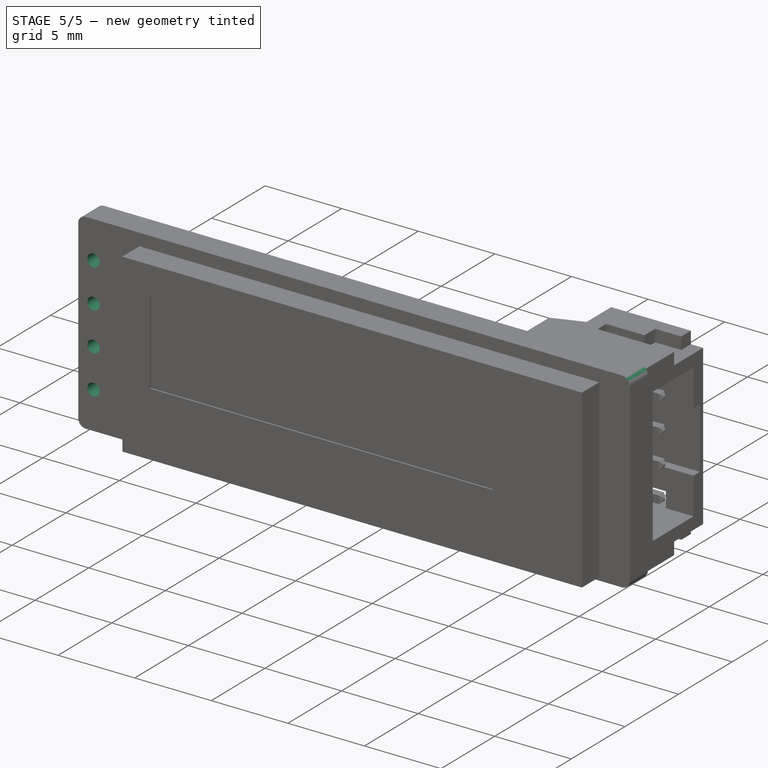
[diagram: stage 5 of 5 — iso view after this stage's code; geometry added in this stage tinted green]
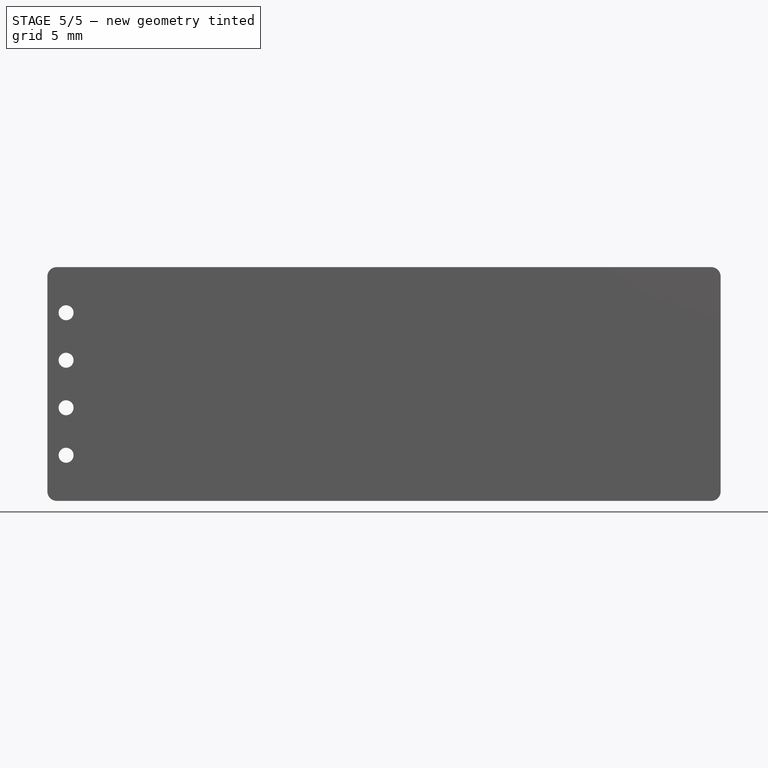
[diagram: stage 5 of 5 — front view after this stage's code; geometry added in this stage tinted green]
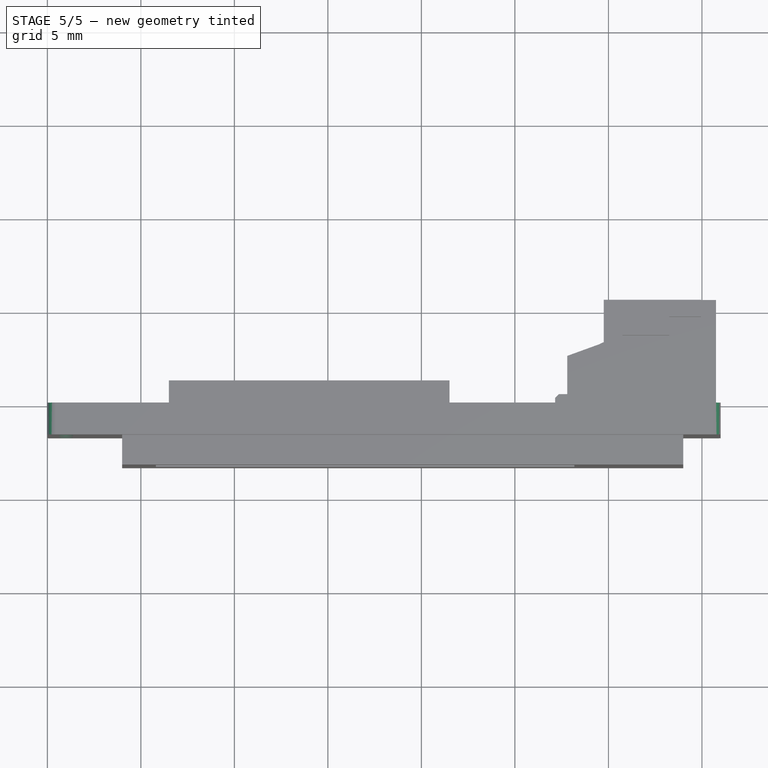
[diagram: stage 5 of 5 — top view after this stage's code; geometry added in this stage tinted green]
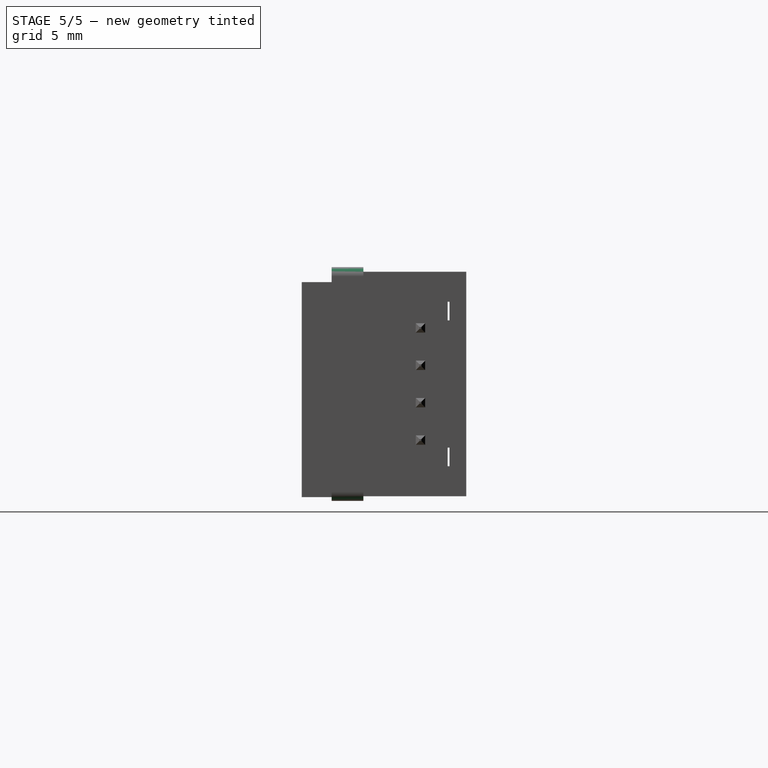
[diagram: stage 5 of 5 — right view after this stage's code; geometry added in this stage tinted green]
FEATURE [PartDesign::Mirrored] Mirrored002
  BaseFeature = -> Pad004
  MirrorPlane = -> DatumPlane
  Originals = -> [Pad004]
  Placement = pos=(0,0,0) rot=(1,0,0;1.5708rad)
  Refine = true
FEATURE [PartDesign::Body] Body005  label="Pin004"
  Group = -> [DatumPlane004,CopyDatumPlane003,Sketch012,Pad008,Chamfer003]
  Origin = -> Origin005
  Tip = -> Chamfer003
FEATURE [PartDesign::Boolean] Boolean
  BaseFeature = -> Mirrored002
  Group = -> [Body002,Body003,Body004,Body005]
  Refine = true
  Type = 0
FEATURE [PartDesign::Hole] Hole
  BaseFeature = -> Pocket003
  Depth = 25
  DepthType = 0
  Diameter = 0.8
  DrillForDepth = false
  DrillPoint = 1
  DrillPointAngle = 118
  HoleCutCountersinkAngle = 90
  HoleCutCustomValues = false
  HoleCutDepth = 0
  HoleCutDiameter = 0
  HoleCutType = 0
  ModelActualThread = false
  Placement = pos=(0,0,0) rot=(1,0,0;1.5708rad)
  Profile = -> Sketch003
  Refine = true
  Reversed = true
  Tapered = false
  TaperedAngle = 90
  ThreadAngle = 0
  ThreadClass = 0
  ThreadCutOffInner = 0
  ThreadCutOffOuter = 0
  ThreadDirection = 0
  ThreadFit = 0
  ThreadPitch = 0
  ThreadSize = 0
  ThreadType = 0
  Threaded = false
FEATURE [PartDesign::LinearPattern] LinearPattern
  BaseFeature = -> Hole
  Direction = -> Z_Axis
  Length = 7.62
  Occurrences = 4
  Originals = -> [Hole]
  Placement = pos=(0,0,0) rot=(1,0,0;1.5708rad)
  Refine = true
FEATURE [PartDesign::Fillet] Fillet
  Base = -> LinearPattern [Edge2,Edge8,Edge1,Edge5]
  BaseFeature = -> LinearPattern
  Placement = pos=(0,0,0) rot=(1,0,0;1.5708rad)
  Radius = 0.5
  Refine = true
  SupportTransform = false
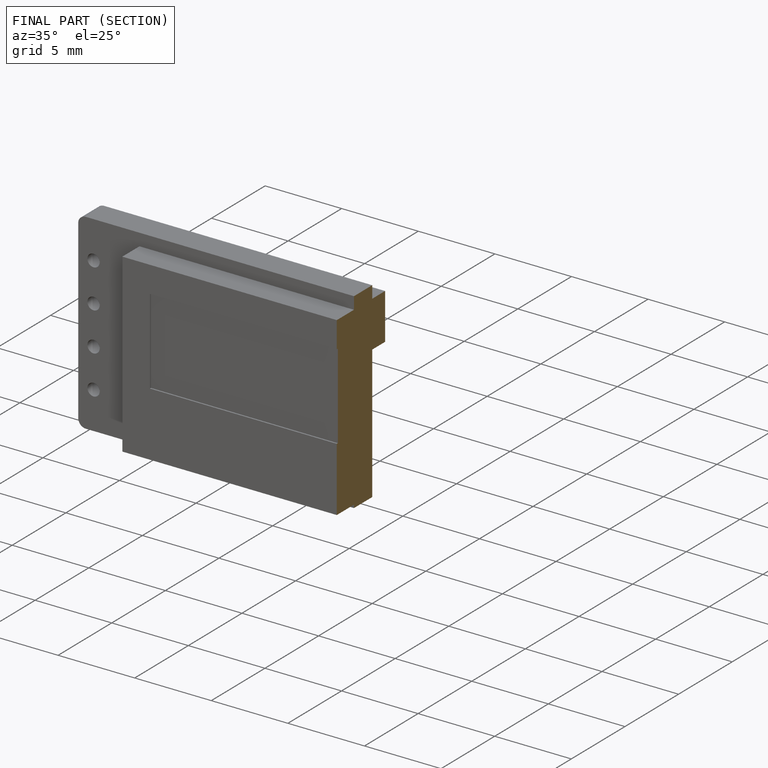
[diagram: finished part — half-section view (interior)]
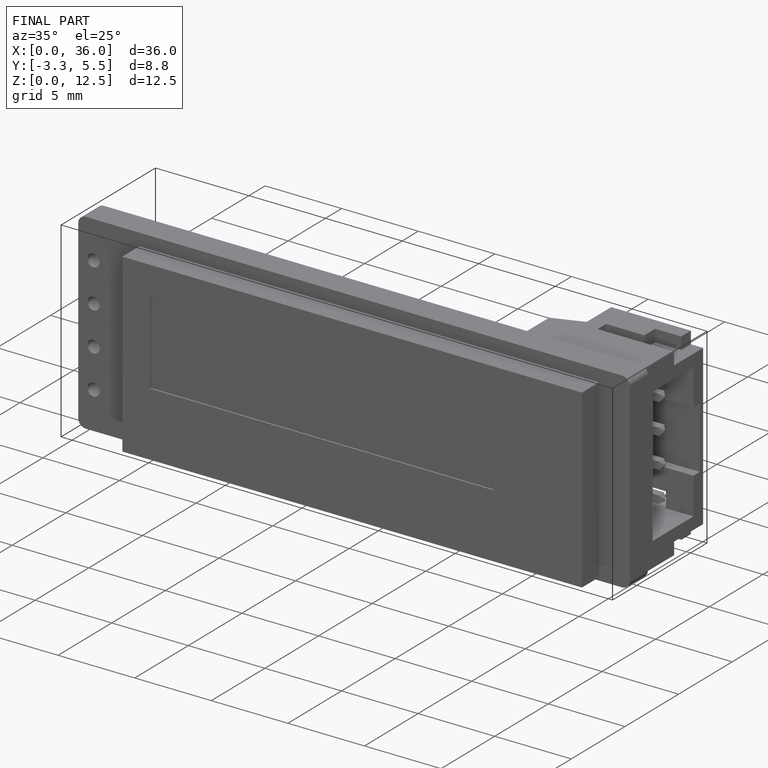
[diagram: finished part — iso view with bounding-box wireframe]
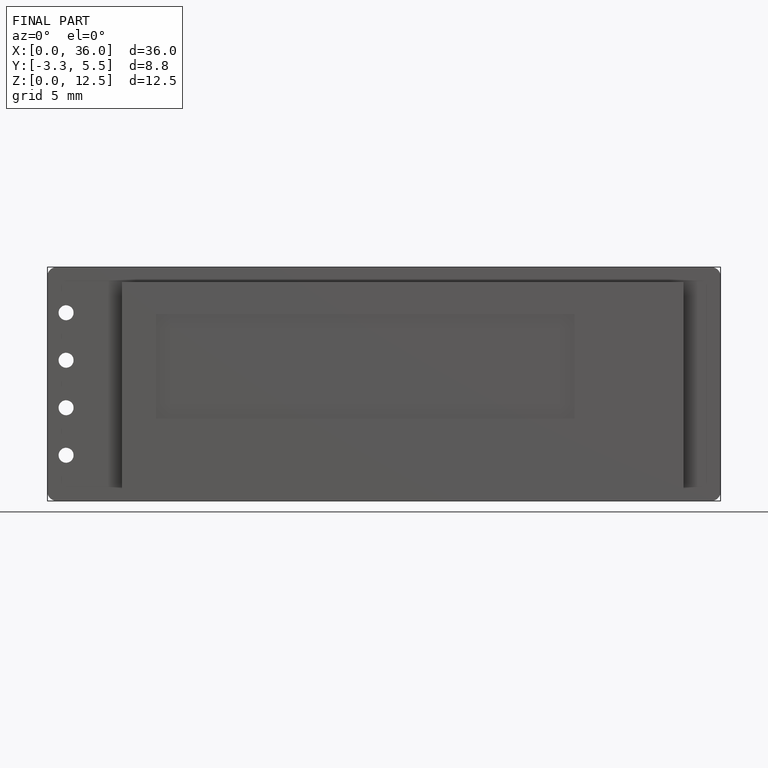
[diagram: finished part — front view with bounding-box wireframe]
